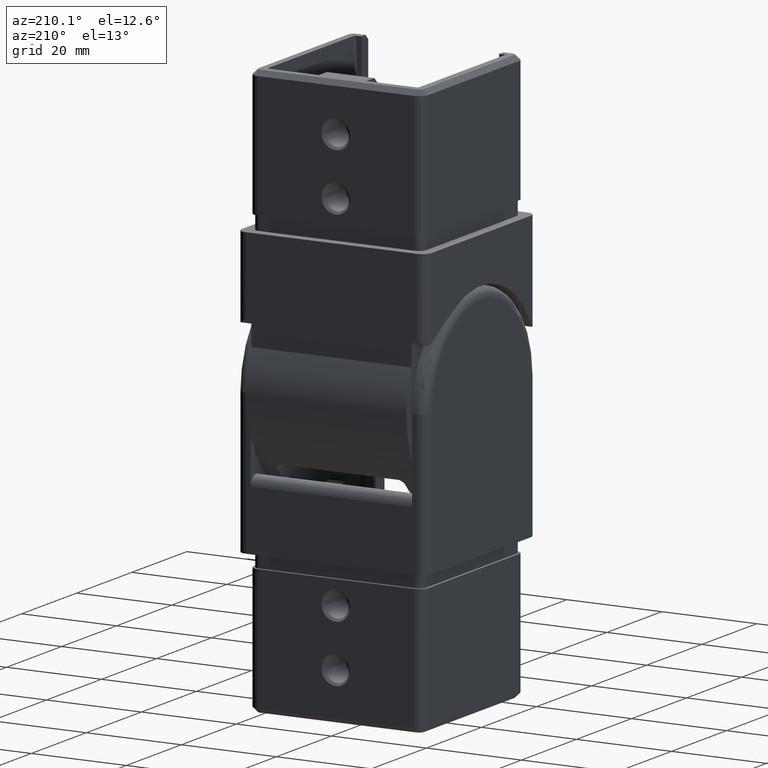
[diagram: clean part render]
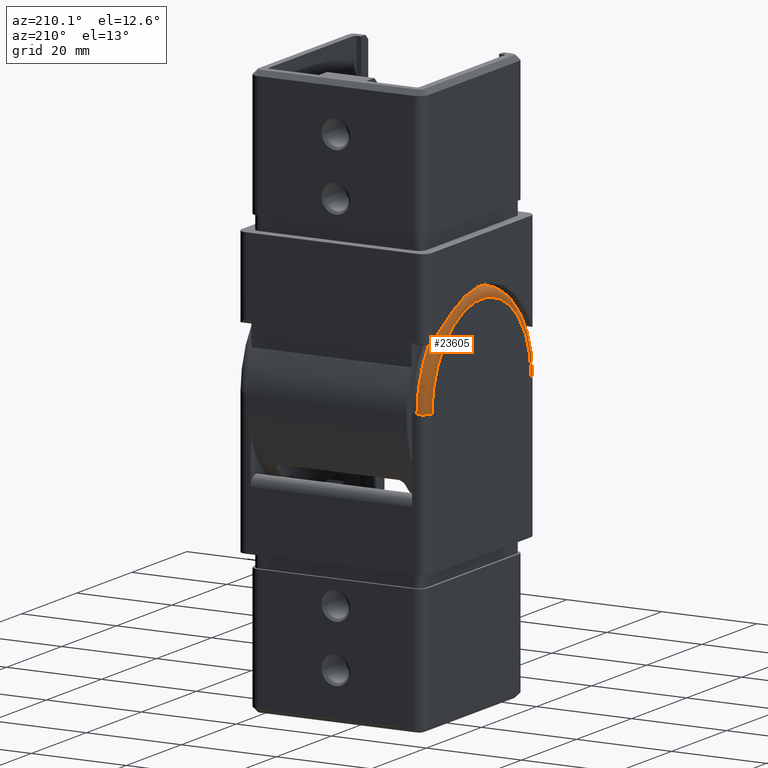
[diagram: same view with one face highlighted and labeled with its STEP entity id]
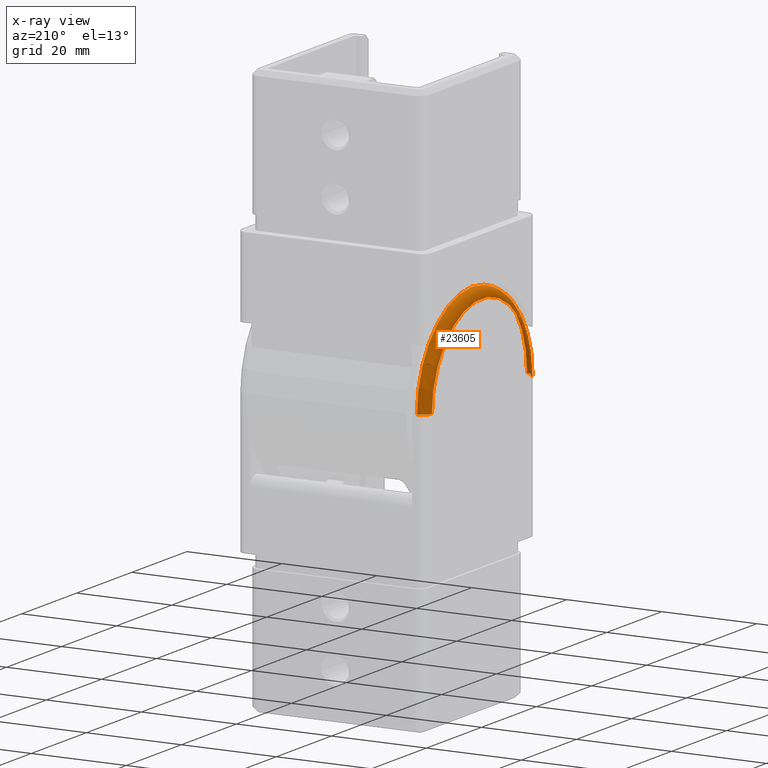
[diagram: x-ray of the same camera — body ghosted, the highlighted face saturated]
A machine part, auxiliary view. The second image highlights one B-rep face of the part: STEP entity #23605.
The next image is the same camera in x-ray: the body ghosted, the highlighted face saturated — about 0% of this face is hidden behind the body in this view.
In plain terms, the highlighted toroidal blend (fillet) surface has major radius 18 mm and minor (blend) radius 2 mm.
Its self-contained STEP definition (entity closure, byte-faithful):
#399 = DIRECTION ( 'NONE',  ( 0.0000000000000000000, 5.551115123125774100E-017, -1.000000000000000000 ) ) ;
#1267 = ORIENTED_EDGE ( 'NONE', *, *, #9232, .F. ) ;
#2014 = AXIS2_PLACEMENT_3D ( 'NONE', #22329, #10769, #2756 ) ;
#2582 = ORIENTED_EDGE ( 'NONE', *, *, #18846, .F. ) ;
#2623 = CIRCLE ( 'NONE', #3211, 18.00000000000003200 ) ;
#2711 = AXIS2_PLACEMENT_3D ( 'NONE', #11895, #19864, #21722 ) ;
#2756 = DIRECTION ( 'NONE',  ( 0.0000000000000000000, 5.551115123125774100E-017, -1.000000000000000000 ) ) ;
#3211 = AXIS2_PLACEMENT_3D ( 'NONE', #22257, #4491, #399 ) ;
#3857 = CIRCLE ( 'NONE', #2711, 2.000000000000001800 ) ;
#4491 = DIRECTION ( 'NONE',  ( 1.000000000000000000, 0.0000000000000000000, 0.0000000000000000000 ) ) ;
#4880 = AXIS2_PLACEMENT_3D ( 'NONE', #23114, #7323, #19080 ) ;
#5051 = VERTEX_POINT ( 'NONE', #6032 ) ;
#5562 = CIRCLE ( 'NONE', #2014, 20.00000000000003600 ) ;
#6018 = TOROIDAL_SURFACE ( 'NONE', #12227, 18.00000000000000400, 2.000000000000000000 ) ;
#6032 = CARTESIAN_POINT ( 'NONE',  ( 17.99999999999998900, 20.00000000000004600, -30.00000000000006800 ) ) ;
#7323 = DIRECTION ( 'NONE',  ( 0.0000000000000000000, -5.551115123125772800E-017, 1.000000000000000000 ) ) ;
#7874 = VERTEX_POINT ( 'NONE', #24054 ) ;
#9232 = EDGE_CURVE ( 'NONE', #5051, #12481, #5562, .T. ) ;
#10134 = CARTESIAN_POINT ( 'NONE',  ( 17.99999999999998900, -20.00000000000003600, -30.00000000000006800 ) ) ;
#10769 = DIRECTION ( 'NONE',  ( -1.000000000000000000, -0.0000000000000000000, -0.0000000000000000000 ) ) ;
#11895 = CARTESIAN_POINT ( 'NONE',  ( 17.99999999999998900, 18.00000000000006000, -30.00000000000007500 ) ) ;
#12227 = AXIS2_PLACEMENT_3D ( 'NONE', #16445, #16362, #16192 ) ;
#12481 = VERTEX_POINT ( 'NONE', #10134 ) ;
#15339 = EDGE_CURVE ( 'NONE', #23453, #7874, #2623, .T. ) ;
#15495 = EDGE_CURVE ( 'NONE', #5051, #7874, #3857, .T. ) ;
#16192 = DIRECTION ( 'NONE',  ( 0.0000000000000000000, 5.551115123125772200E-017, -1.000000000000000000 ) ) ;
#16362 = DIRECTION ( 'NONE',  ( 1.000000000000000000, 0.0000000000000000000, 0.0000000000000000000 ) ) ;
#16445 = CARTESIAN_POINT ( 'NONE',  ( 17.99999999999998900, 1.698124843478632200E-015, -30.00000000000007100 ) ) ;
#16521 = FACE_OUTER_BOUND ( 'NONE', #18017, .T. ) ;
#16740 = CIRCLE ( 'NONE', #4880, 2.000000000000001800 ) ;
#17133 = ORIENTED_EDGE ( 'NONE', *, *, #15495, .T. ) ;
#18017 = EDGE_LOOP ( 'NONE', ( #17133, #18560, #2582, #1267 ) ) ;
#18560 = ORIENTED_EDGE ( 'NONE', *, *, #15339, .F. ) ;
#18846 = EDGE_CURVE ( 'NONE', #12481, #23453, #16740, .T. ) ;
#19080 = DIRECTION ( 'NONE',  ( 1.000000000000000000, 0.0000000000000000000, 0.0000000000000000000 ) ) ;
#19864 = DIRECTION ( 'NONE',  ( 0.0000000000000000000, 5.551115123125772800E-017, -1.000000000000000000 ) ) ;
#21383 = CARTESIAN_POINT ( 'NONE',  ( 19.99999999999998900, -18.00000000000003600, -30.00000000000008500 ) ) ;
#21722 = DIRECTION ( 'NONE',  ( -1.000000000000000000, 0.0000000000000000000, 0.0000000000000000000 ) ) ;
#22257 = CARTESIAN_POINT ( 'NONE',  ( 19.99999999999998900, 1.698124843478632200E-015, -30.00000000000007100 ) ) ;
#22329 = CARTESIAN_POINT ( 'NONE',  ( 17.99999999999998900, 1.698124843478632200E-015, -30.00000000000007100 ) ) ;
#23114 = CARTESIAN_POINT ( 'NONE',  ( 17.99999999999998900, -18.00000000000003600, -30.00000000000008500 ) ) ;
#23453 = VERTEX_POINT ( 'NONE', #21383 ) ;
#23605 = ADVANCED_FACE ( 'NONE', ( #16521 ), #6018, .T. ) ;
#24054 = CARTESIAN_POINT ( 'NONE',  ( 19.99999999999998900, 18.00000000000006000, -30.00000000000007500 ) ) ;